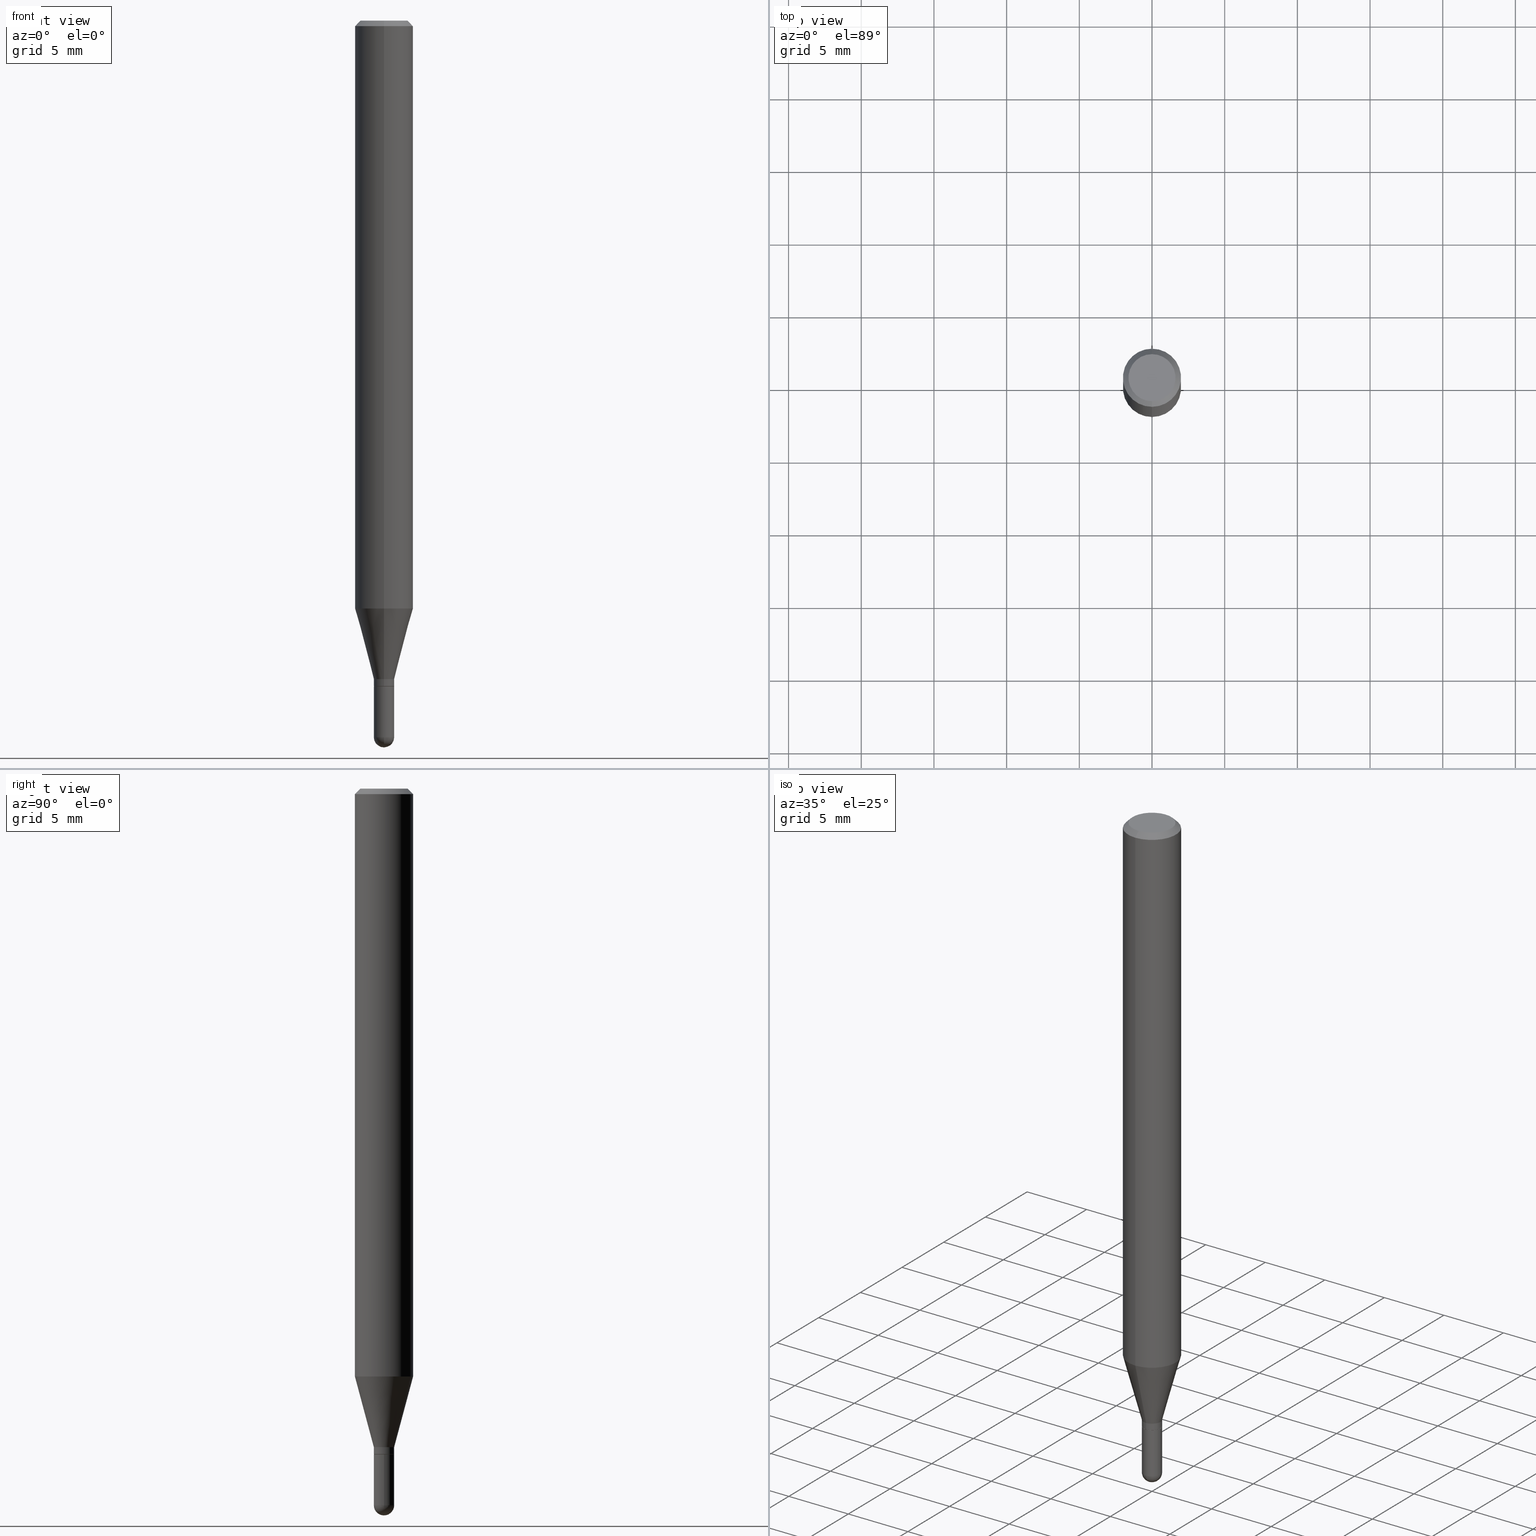
[diagram: canonical four-view strip — front | top / right | iso, engineering-drawing reading convention]
A machine part, canonical four-view strip (front | top / right | iso — engineering-drawing reading convention). The complete STEP part file that produces these views, byte-faithful:
ISO-10303-21;
HEADER;
FILE_DESCRIPTION (( 'STEP AP203' ),
    '1' );
FILE_NAME ('03019.STEP',
    '2024-03-08T18:00:51',
    ( '' ),
    ( '' ),
    'SwSTEP 2.0',
    'SolidWorks 2023',
    '' );
FILE_SCHEMA (( 'CONFIG_CONTROL_DESIGN' ));
ENDSEC;

DATA;
#1 = CARTESIAN_POINT ( 'NONE',  ( 4.408288980182875809E-29, -6.293619801112154185E-15, -1.802599999999999980 ) ) ;
#2 = EDGE_LOOP ( 'NONE', ( #88, #244, #318, #353, #144 ) ) ;
#3 = EDGE_CURVE ( 'NONE', #179, #322, #422, .T. ) ;
#4 = EDGE_CURVE ( 'NONE', #286, #284, #133, .T. ) ;
#5 = CARTESIAN_POINT ( 'NONE',  ( -1.888891404313694125E-16, -0.02705000000000629817, -1.803099999999999703 ) ) ;
#6 = ORIENTED_EDGE ( 'NONE', *, *, #24, .T. ) ;
#7 = DIRECTION ( 'NONE',  ( -6.982962677686266711E-15, -1.000000000000000000, 0.000000000000000000 ) ) ;
#8 = ORIENTED_EDGE ( 'NONE', *, *, #302, .T. ) ;
#9 = CARTESIAN_POINT ( 'NONE',  ( 0.000000000000000000, 0.000000000000000000, 0.000000000000000000 ) ) ;
#10 = AXIS2_PLACEMENT_3D ( 'NONE', #196, #82, #471 ) ;
#11 = VECTOR ( 'NONE', #367, 39.37007874015748143 ) ;
#12 = VERTEX_POINT ( 'NONE', #252 ) ;
#13 = CIRCLE ( 'NONE', #91, 0.02755000000000000157 ) ;
#14 = APPROVAL_PERSON_ORGANIZATION ( #354, #78, #508 ) ;
#15 = CARTESIAN_POINT ( 'NONE',  ( 0.02755000000000000851, -1.923806217702566944E-16, 1.343386701731780684E-30 ) ) ;
#16 = ORIENTED_EDGE ( 'NONE', *, *, #64, .T. ) ;
#17 = FACE_OUTER_BOUND ( 'NONE', #278, .T. ) ;
#18 = CARTESIAN_POINT ( 'NONE',  ( 5.499083108677937401E-16, 0.07874999999999994504, -0.01500000000000029261 ) ) ;
#19 = FACE_OUTER_BOUND ( 'NONE', #211, .T. ) ;
#20 = DIRECTION ( 'NONE',  ( 4.937700262164548831E-15, 0.7071067811865452413, -0.7071067811865497932 ) ) ;
#21 = EDGE_CURVE ( 'NONE', #183, #42, #372, .T. ) ;
#22 = CARTESIAN_POINT ( 'NONE',  ( -5.499083108677546915E-16, -0.07875000000000557943, -1.592418998652472384 ) ) ;
#23 = DIRECTION ( 'NONE',  ( -2.445468806185136597E-29, 3.491481338843145583E-15, 1.000000000000000000 ) ) ;
#24 = EDGE_CURVE ( 'NONE', #331, #166, #157, .T. ) ;
#25 = CARTESIAN_POINT ( 'NONE',  ( 4.746532679365040693E-29, -6.776790704627602522E-15, -1.940949999999999953 ) ) ;
#26 = PRODUCT_RELATED_PRODUCT_CATEGORY ( 'detail', '', ( #384 ) ) ;
#27 = DIRECTION ( 'NONE',  ( 1.000000000000000000, -6.982962677686265922E-15, 4.883557194083112340E-29 ) ) ;
#28 = AXIS2_PLACEMENT_3D ( 'NONE', #25, #336, #301 ) ;
#29 = CARTESIAN_POINT ( 'NONE',  ( 0.000000000000000000, 0.000000000000000000, 0.000000000000000000 ) ) ;
#30 = CC_DESIGN_APPROVAL ( #71, ( #418 ) ) ;
#31 = COORDINATED_UNIVERSAL_TIME_OFFSET ( 5, 0, .BEHIND. ) ;
#32 = CIRCLE ( 'NONE', #386, 0.02754999999999964769 ) ;
#33 = FACE_OUTER_BOUND ( 'NONE', #491, .T. ) ;
#34 = PERSON_AND_ORGANIZATION ( #449, #142 ) ;
#35 = CARTESIAN_POINT ( 'NONE',  ( 4.361579605101607956E-29, -6.226933826297307491E-15, -1.783500000000000085 ) ) ;
#36 = EDGE_LOOP ( 'NONE', ( #444, #329, #356, #338 ) ) ;
#37 = CARTESIAN_POINT ( 'NONE',  ( -1.923806217702541799E-16, -0.02754999999999964769, 9.618840869890028416E-17 ) ) ;
#38 = DIRECTION ( 'NONE',  ( -2.445517019961652946E-29, 3.491412293971016589E-15, 1.000000000000000000 ) ) ;
#39 = ORIENTED_EDGE ( 'NONE', *, *, #350, .F. ) ;
#40 = AXIS2_PLACEMENT_3D ( 'NONE', #205, #202, #355 ) ;
#41 = DIRECTION ( 'NONE',  ( -2.445517019961652946E-29, 3.491412293971016589E-15, 1.000000000000000000 ) ) ;
#42 = VERTEX_POINT ( 'NONE', #101 ) ;
#43 = DIRECTION ( 'NONE',  ( -6.982962677686264344E-15, -1.000000000000000000, 3.469013325287953293E-15 ) ) ;
#44 = ORIENTED_EDGE ( 'NONE', *, *, #280, .F. ) ;
#45 = CC_DESIGN_DATE_AND_TIME_ASSIGNMENT ( #270, #316, ( #418 ) ) ;
#46 = CARTESIAN_POINT ( 'NONE',  ( -0.02755000000000000157, -6.340385829645931250E-15, -1.803099999999999925 ) ) ;
#47 = EDGE_LOOP ( 'NONE', ( #81, #6 ) ) ;
#48 = VECTOR ( 'NONE', #399, 39.37007874015748143 ) ;
#49 = DIRECTION ( 'NONE',  ( 6.982962677686265922E-15, 1.000000000000000000, -3.491412293971016589E-15 ) ) ;
#50 = ORIENTED_EDGE ( 'NONE', *, *, #272, .F. ) ;
#51 = AXIS2_PLACEMENT_3D ( 'NONE', #65, #139, #425 ) ;
#52 = CARTESIAN_POINT ( 'NONE',  ( 4.114564141767253566E-46, -5.874275137583690859E-32, -1.682492539688712788E-17 ) ) ;
#53 = MANIFOLD_SOLID_BREP ( 'Body-Move/Copy2[1]', #306 ) ;
#54 = DIRECTION ( 'NONE',  ( -6.982962677686265922E-15, -1.000000000000000000, 3.491412293971016589E-15 ) ) ;
#55 = DIRECTION ( 'NONE',  ( -2.445468806185136597E-29, 3.491481338843145583E-15, 1.000000000000000000 ) ) ;
#56 = EDGE_CURVE ( 'NONE', #166, #331, #13, .T. ) ;
#57 = VERTEX_POINT ( 'NONE', #63 ) ;
#58 = EDGE_CURVE ( 'NONE', #183, #286, #261, .T. ) ;
#59 = DIRECTION ( 'NONE',  ( -2.445517019961652946E-29, 3.491412293971016589E-15, 1.000000000000000000 ) ) ;
#60 = FACE_OUTER_BOUND ( 'NONE', #446, .T. ) ;
#61 = APPROVAL_PERSON_ORGANIZATION ( #230, #71, #385 ) ;
#62 = CARTESIAN_POINT ( 'NONE',  ( -4.888104823412212925E-16, -0.06374999999999998723, 2.057526083437651208E-16 ) ) ;
#63 = CARTESIAN_POINT ( 'NONE',  ( -1.923806217702105461E-16, -0.02755000000000587534, -1.783500000000000085 ) ) ;
#64 = EDGE_CURVE ( 'NONE', #237, #179, #213, .T. ) ;
#65 = CARTESIAN_POINT ( 'NONE',  ( 4.744176696238351867E-29, -6.780164606559253859E-15, -1.940949999999999953 ) ) ;
#66 = DIRECTION ( 'NONE',  ( -2.445517019961652946E-29, 3.491412293971016589E-15, 1.000000000000000000 ) ) ;
#67 = FACE_OUTER_BOUND ( 'NONE', #124, .T. ) ;
#68 = EDGE_CURVE ( 'NONE', #488, #179, #398, .T. ) ;
#69 = APPROVAL_STATUS ( 'not_yet_approved' ) ;
#70 = APPLICATION_PROTOCOL_DEFINITION ( 'international standard', 'config_control_design', 1994, #430 ) ;
#71 = APPROVAL ( #69, 'UNSPECIFIED' ) ;
#72 = CALENDAR_DATE ( 2024, 8, 3 ) ;
#73 = CARTESIAN_POINT ( 'NONE',  ( 4.746532679365040693E-29, -6.776790704627602522E-15, -1.940949999999999953 ) ) ;
#74 = VECTOR ( 'NONE', #168, 39.37007874015748854 ) ;
#75 = PERSON_AND_ORGANIZATION ( #449, #142 ) ;
#76 = CONICAL_SURFACE ( 'NONE', #391, 0.02754999999999964769, 0.2617993877991500740 ) ;
#77 = CYLINDRICAL_SURFACE ( 'NONE', #117, 0.02754999999999964769 ) ;
#78 = APPROVAL ( #432, 'UNSPECIFIED' ) ;
#79 = FACE_OUTER_BOUND ( 'NONE', #359, .T. ) ;
#80 = DIRECTION ( 'NONE',  ( -2.445517019961652946E-29, 3.491412293971016589E-15, 1.000000000000000000 ) ) ;
#81 = ORIENTED_EDGE ( 'NONE', *, *, #56, .T. ) ;
#82 = DIRECTION ( 'NONE',  ( -2.445517019961652946E-29, 3.491412293971016589E-15, 1.000000000000000000 ) ) ;
#83 = AXIS2_PLACEMENT_3D ( 'NONE', #462, #345, #304 ) ;
#84 = EDGE_LOOP ( 'NONE', ( #369, #8, #50, #327 ) ) ;
#85 = ORIENTED_EDGE ( 'NONE', *, *, #148, .T. ) ;
#86 = ADVANCED_FACE ( 'NONE', ( #60 ), #185, .F. ) ;
#87 = PLANE ( 'NONE',  #241 ) ;
#88 = ORIENTED_EDGE ( 'NONE', *, *, #165, .F. ) ;
#89 = LINE ( 'NONE', #325, #74 ) ;
#90 = EDGE_LOOP ( 'NONE', ( #208, #362, #203, #476 ) ) ;
#91 = AXIS2_PLACEMENT_3D ( 'NONE', #416, #414, #303 ) ;
#92 = DIRECTION ( 'NONE',  ( -1.000000000000000000, 6.982962677686266711E-15, -4.883557194083112901E-29 ) ) ;
#93 = DIRECTION ( 'NONE',  ( 1.000000000000000000, -6.982962677686256455E-15, 0.000000000000000000 ) ) ;
#94 = AXIS2_PLACEMENT_3D ( 'NONE', #1, #38, #470 ) ;
#95 = CYLINDRICAL_SURFACE ( 'NONE', #132, 0.02755000000000000851 ) ;
#96 = ORIENTED_EDGE ( 'NONE', *, *, #215, .T. ) ;
#97 = CARTESIAN_POINT ( 'NONE',  ( 0.000000000000000000, 0.000000000000000000, 0.000000000000000000 ) ) ;
#98 = CARTESIAN_POINT ( 'NONE',  ( 4.409511738692855856E-29, -6.295365507259138676E-15, -1.803099999999999703 ) ) ;
#99 = CIRCLE ( 'NONE', #169, 0.07875000000000000056 ) ;
#100 = CYLINDRICAL_SURFACE ( 'NONE', #307, 0.02755000000000000851 ) ;
#101 = CARTESIAN_POINT ( 'NONE',  ( 5.595524044111180475E-16, 0.07874999999999994504, -0.01500000000000029261 ) ) ;
#102 = CARTESIAN_POINT ( 'NONE',  ( -1.923806217702107926E-16, -0.02755000000000604188, -1.802599999999999980 ) ) ;
#103 = AXIS2_PLACEMENT_3D ( 'NONE', #214, #59, #282 ) ;
#104 = CC_DESIGN_APPROVAL ( #78, ( #249 ) ) ;
#105 = CC_DESIGN_DATE_AND_TIME_ASSIGNMENT ( #310, #193, ( #249 ) ) ;
#106 = EDGE_CURVE ( 'NONE', #281, #200, #481, .T. ) ;
#107 = COORDINATED_UNIVERSAL_TIME_OFFSET ( 5, 0, .BEHIND. ) ;
#108 = EDGE_CURVE ( 'NONE', #126, #42, #297, .T. ) ;
#109 = APPROVAL_ROLE ( '' ) ;
#110 = DIRECTION ( 'NONE',  ( -2.445517019961652946E-29, 3.491412293971016589E-15, 1.000000000000000000 ) ) ;
#111 = ADVANCED_FACE ( 'NONE', ( #343 ), #256, .T. ) ;
#112 = COORDINATED_UNIVERSAL_TIME_OFFSET ( 5, 0, .BEHIND. ) ;
#113 = DIRECTION ( 'NONE',  ( -6.982962677686266711E-15, -1.000000000000000000, 0.000000000000000000 ) ) ;
#114 = AXIS2_PLACEMENT_3D ( 'NONE', #342, #499, #421 ) ;
#115 = APPROVAL_DATE_TIME ( #201, #130 ) ;
#116 = CARTESIAN_POINT ( 'NONE',  ( 5.595524044111174559E-16, 0.07874999999999440781, -1.592418998652472828 ) ) ;
#117 = AXIS2_PLACEMENT_3D ( 'NONE', #119, #475, #429 ) ;
#118 = ORIENTED_EDGE ( 'NONE', *, *, #137, .F. ) ;
#119 = CARTESIAN_POINT ( 'NONE',  ( 0.000000000000000000, 0.000000000000000000, 0.000000000000000000 ) ) ;
#120 = ADVANCED_FACE ( 'NONE', ( #79 ), #332, .T. ) ;
#121 = CIRCLE ( 'NONE', #407, 0.06374999999999998723 ) ;
#122 = ORIENTED_EDGE ( 'NONE', *, *, #388, .T. ) ;
#123 = CARTESIAN_POINT ( 'NONE',  ( 3.668275529942483535E-31, -5.237118440956531219E-17, -0.01500000000000001679 ) ) ;
#124 = EDGE_LOOP ( 'NONE', ( #305, #239, #39, #511 ) ) ;
#125 = DIRECTION ( 'NONE',  ( -2.445517019961652946E-29, 3.491412293971016589E-15, 1.000000000000000000 ) ) ;
#126 = VERTEX_POINT ( 'NONE', #271 ) ;
#127 = EDGE_CURVE ( 'NONE', #197, #57, #311, .T. ) ;
#128 = CARTESIAN_POINT ( 'NONE',  ( 3.776534640565333034E-16, 0.02754999999999342003, -1.783500000000000085 ) ) ;
#129 = ORIENTED_EDGE ( 'NONE', *, *, #350, .T. ) ;
#130 = APPROVAL ( #151, 'UNSPECIFIED' ) ;
#131 = DIRECTION ( 'NONE',  ( -2.445517019961652946E-29, 3.491412293971016589E-15, 1.000000000000000000 ) ) ;
#132 = AXIS2_PLACEMENT_3D ( 'NONE', #485, #415, #404 ) ;
#133 = LINE ( 'NONE', #292, #315 ) ;
#134 = CIRCLE ( 'NONE', #51, 0.02755000000000005014 ) ;
#135 = DIRECTION ( 'NONE',  ( -1.000000000000000000, 6.982962677686266711E-15, -4.883557194083112901E-29 ) ) ;
#136 = DIRECTION ( 'NONE',  ( 1.000000000000000000, -6.982962677686254878E-15, 0.000000000000000000 ) ) ;
#137 = EDGE_CURVE ( 'NONE', #200, #281, #408, .T. ) ;
#138 = EDGE_LOOP ( 'NONE', ( #400, #122, #250, #140 ) ) ;
#139 = DIRECTION ( 'NONE',  ( -1.000000000000000000, 7.105427357601001070E-15, -4.926315508542082329E-29 ) ) ;
#140 = ORIENTED_EDGE ( 'NONE', *, *, #170, .F. ) ;
#141 = AXIS2_PLACEMENT_3D ( 'NONE', #451, #135, #439 ) ;
#142 = ORGANIZATION ( 'UNSPECIFIED', 'UNSPECIFIED', '' ) ;
#143 = APPLICATION_PROTOCOL_DEFINITION ( 'international standard', 'config_control_design', 1994, #442 ) ;
#144 = ORIENTED_EDGE ( 'NONE', *, *, #24, .F. ) ;
#145 = PERSON_AND_ORGANIZATION_ROLE ( 'design_owner' ) ;
#146 = AXIS2_PLACEMENT_3D ( 'NONE', #394, #80, #427 ) ;
#147 = ORIENTED_EDGE ( 'NONE', *, *, #108, .F. ) ;
#148 = EDGE_CURVE ( 'NONE', #42, #284, #371, .T. ) ;
#149 = MECHANICAL_CONTEXT ( 'NONE', #442, 'mechanical' ) ;
#150 = CALENDAR_DATE ( 2024, 8, 3 ) ;
#151 = APPROVAL_STATUS ( 'not_yet_approved' ) ;
#152 = CARTESIAN_POINT ( 'NONE',  ( 1.923806217703042972E-16, 0.02754999999999325003, -1.940949999999999953 ) ) ;
#153 = EDGE_CURVE ( 'NONE', #57, #286, #433, .T. ) ;
#154 = SECURITY_CLASSIFICATION_LEVEL ( 'unclassified' ) ;
#155 = CARTESIAN_POINT ( 'NONE',  ( 0.02755000000000000851, -6.728520975118096173E-15, -1.940949999999999953 ) ) ;
#156 = SHAPE_DEFINITION_REPRESENTATION ( #469, #396 ) ;
#157 = CIRCLE ( 'NONE', #259, 0.02755000000000000157 ) ;
#158 = CARTESIAN_POINT ( 'NONE',  ( 4.361579605101607956E-29, -6.226933826297307491E-15, -1.783500000000000085 ) ) ;
#159 = AXIS2_PLACEMENT_3D ( 'NONE', #123, #248, #218 ) ;
#160 = ORIENTED_EDGE ( 'NONE', *, *, #360, .T. ) ;
#161 = PERSON_AND_ORGANIZATION ( #449, #142 ) ;
#162 = CARTESIAN_POINT ( 'NONE',  ( 1.957545237019050732E-16, 0.02754999999999964769, -9.618840869890028416E-17 ) ) ;
#163 = ORIENTED_EDGE ( 'NONE', *, *, #165, .T. ) ;
#164 = CARTESIAN_POINT ( 'NONE',  ( 3.894287764114914031E-29, -5.559791269048257593E-15, -1.592418998652472606 ) ) ;
#165 = EDGE_CURVE ( 'NONE', #322, #331, #317, .T. ) ;
#166 = VERTEX_POINT ( 'NONE', #273 ) ;
#167 = AXIS2_PLACEMENT_3D ( 'NONE', #455, #374, #181 ) ;
#168 = DIRECTION ( 'NONE',  ( 1.839019923739598738E-15, 0.2588190451025247363, 0.9659258262890673130 ) ) ;
#169 = AXIS2_PLACEMENT_3D ( 'NONE', #164, #402, #43 ) ;
#170 = EDGE_CURVE ( 'NONE', #281, #197, #235, .T. ) ;
#171 = ORIENTED_EDGE ( 'NONE', *, *, #3, .T. ) ;
#172 = CARTESIAN_POINT ( 'NONE',  ( -5.402642173245076924E-16, -0.07875000000000004219, -0.01499999999999974097 ) ) ;
#173 = ORIENTED_EDGE ( 'NONE', *, *, #459, .T. ) ;
#174 = VECTOR ( 'NONE', #240, 39.37007874015748143 ) ;
#175 = LINE ( 'NONE', #15, #457 ) ;
#176 = ORIENTED_EDGE ( 'NONE', *, *, #3, .F. ) ;
#177 = AXIS2_PLACEMENT_3D ( 'NONE', #269, #41, #113 ) ;
#178 = CARTESIAN_POINT ( 'NONE',  ( -0.02755000000000000851, -6.340385829645931250E-15, -1.940949999999999953 ) ) ;
#179 = VERTEX_POINT ( 'NONE', #152 ) ;
#180 = FACE_OUTER_BOUND ( 'NONE', #504, .T. ) ;
#181 = DIRECTION ( 'NONE',  ( -6.982962677686266711E-15, -1.000000000000000000, 0.000000000000000000 ) ) ;
#182 = DIRECTION ( 'NONE',  ( -6.982962677686264344E-15, -1.000000000000000000, 3.491412293971015800E-15 ) ) ;
#183 = VERTEX_POINT ( 'NONE', #116 ) ;
#184 = CYLINDRICAL_SURFACE ( 'NONE', #500, 0.07875000000000000056 ) ;
#185 = PLANE ( 'NONE',  #512 ) ;
#186 = DIMENSIONAL_EXPONENTS ( 1.000000000000000000, 0.000000000000000000, 0.000000000000000000, 0.000000000000000000, 0.000000000000000000, 0.000000000000000000, 0.000000000000000000 ) ;
#187 = LOCAL_TIME ( 13, 0, 51.00000000000000000, #31 ) ;
#188 = PLANE ( 'NONE',  #83 ) ;
#189 = CALENDAR_DATE ( 2024, 8, 3 ) ;
#190 = CIRCLE ( 'NONE', #253, 0.02754999999999964769 ) ;
#191 = AXIS2_PLACEMENT_3D ( 'NONE', #461, #27, #221 ) ;
#192 = CIRCLE ( 'NONE', #401, 0.02755000000000000851 ) ;
#193 = DATE_TIME_ROLE ( 'classification_date' ) ;
#194 = CC_DESIGN_PERSON_AND_ORGANIZATION_ASSIGNMENT ( #319, #466, ( #249 ) ) ;
#195 =( GEOMETRIC_REPRESENTATION_CONTEXT ( 3 ) GLOBAL_UNCERTAINTY_ASSIGNED_CONTEXT ( ( #267 ) ) GLOBAL_UNIT_ASSIGNED_CONTEXT ( ( #257, #339, #502 ) ) REPRESENTATION_CONTEXT ( 'NONE', 'WORKASPACE' ) );
#196 = CARTESIAN_POINT ( 'NONE',  ( 4.361579605101607956E-29, -6.226933826297307491E-15, -1.783500000000000085 ) ) ;
#197 = VERTEX_POINT ( 'NONE', #102 ) ;
#198 = DIRECTION ( 'NONE',  ( -1.807323732225328562E-15, -0.2588190451025179639, 0.9659258262890690894 ) ) ;
#199 = EDGE_CURVE ( 'NONE', #217, #440, #395, .T. ) ;
#200 = VERTEX_POINT ( 'NONE', #509 ) ;
#201 = DATE_AND_TIME ( #150, #473 ) ;
#202 = DIRECTION ( 'NONE',  ( -2.445517019961652946E-29, 3.491412293971016589E-15, 1.000000000000000000 ) ) ;
#203 = ORIENTED_EDGE ( 'NONE', *, *, #127, .T. ) ;
#204 = PERSON_AND_ORGANIZATION_ROLE ( 'creator' ) ;
#205 = CARTESIAN_POINT ( 'NONE',  ( 4.409511738692855856E-29, -6.295365507259138676E-15, -1.803099999999999703 ) ) ;
#206 = EDGE_LOOP ( 'NONE', ( #219, #468, #262, #242 ) ) ;
#207 = DIRECTION ( 'NONE',  ( -2.445468806185136597E-29, 3.491481338843145583E-15, 1.000000000000000000 ) ) ;
#208 = ORIENTED_EDGE ( 'NONE', *, *, #199, .F. ) ;
#209 = ADVANCED_FACE ( 'NONE', ( #320 ), #77, .T. ) ;
#210 = CYLINDRICAL_SURFACE ( 'NONE', #298, 0.02754999999999964769 ) ;
#211 = EDGE_LOOP ( 'NONE', ( #365, #173, #44, #176 ) ) ;
#212 = AXIS2_PLACEMENT_3D ( 'NONE', #501, #258, #349 ) ;
#213 = CIRCLE ( 'NONE', #265, 0.02755000000000000851 ) ;
#214 = CARTESIAN_POINT ( 'NONE',  ( 3.668275529942483535E-31, -5.237118440956531219E-17, -0.01500000000000001679 ) ) ;
#215 = EDGE_CURVE ( 'NONE', #197, #217, #346, .T. ) ;
#216 = APPROVAL_PERSON_ORGANIZATION ( #75, #130, #109 ) ;
#217 = VERTEX_POINT ( 'NONE', #478 ) ;
#218 = DIRECTION ( 'NONE',  ( 6.982962677686264344E-15, 1.000000000000000000, -3.496114991891765576E-15 ) ) ;
#219 = ORIENTED_EDGE ( 'NONE', *, *, #459, .F. ) ;
#220 = DIRECTION ( 'NONE',  ( 6.982962677686266711E-15, 1.000000000000000000, 0.000000000000000000 ) ) ;
#221 = DIRECTION ( 'NONE',  ( 6.982962677686266711E-15, 1.000000000000000000, 0.000000000000000000 ) ) ;
#222 = DIRECTION ( 'NONE',  ( -6.982962677686265922E-15, -1.000000000000000000, 3.491412293971016589E-15 ) ) ;
#223 = DIRECTION ( 'NONE',  ( -2.445517019961652385E-29, 3.491412293971016589E-15, 1.000000000000000000 ) ) ;
#224 = DIRECTION ( 'NONE',  ( -2.445517019961652946E-29, 3.491412293971016589E-15, 1.000000000000000000 ) ) ;
#225 = CARTESIAN_POINT ( 'NONE',  ( 5.595524044110787031E-16, 0.07875000000000000056, -2.749487181502175115E-16 ) ) ;
#226 = MANIFOLD_SOLID_BREP ( 'Body-Move/Copy2[2]', #492 ) ;
#227 = CARTESIAN_POINT ( 'NONE',  ( 4.746532679365040693E-29, -6.776790704627602522E-15, -1.940949999999999953 ) ) ;
#228 = DIRECTION ( 'NONE',  ( -2.445517019961652946E-29, 3.491412293971016589E-15, 1.000000000000000000 ) ) ;
#229 = DIRECTION ( 'NONE',  ( 1.000000000000000000, -6.982962677686265922E-15, 4.876176775795935793E-29 ) ) ;
#230 = PERSON_AND_ORGANIZATION ( #449, #142 ) ;
#231 = EDGE_CURVE ( 'NONE', #57, #440, #190, .T. ) ;
#232 = DIRECTION ( 'NONE',  ( 1.000000000000000000, -6.982962677686254878E-15, 0.000000000000000000 ) ) ;
#233 = CONICAL_SURFACE ( 'NONE', #10, 0.02754999999999964769, 0.2617993877991500740 ) ;
#234 = CARTESIAN_POINT ( 'NONE',  ( 4.361579605101607956E-29, -6.226933826297307491E-15, -1.783500000000000085 ) ) ;
#235 = LINE ( 'NONE', #5, #174 ) ;
#236 = EDGE_CURVE ( 'NONE', #440, #57, #32, .T. ) ;
#237 = VERTEX_POINT ( 'NONE', #155 ) ;
#238 = CARTESIAN_POINT ( 'NONE',  ( -0.02755000000000000851, 1.957545237019076617E-16, -1.355166617365226740E-30 ) ) ;
#239 = ORIENTED_EDGE ( 'NONE', *, *, #21, .T. ) ;
#240 = DIRECTION ( 'NONE',  ( -4.937700262164674260E-15, -0.7071067811865632269, 0.7071067811865319186 ) ) ;
#241 = AXIS2_PLACEMENT_3D ( 'NONE', #246, #406, #49 ) ;
#242 = ORIENTED_EDGE ( 'NONE', *, *, #333, .F. ) ;
#243 = CARTESIAN_POINT ( 'NONE',  ( 4.408288980182875809E-29, -6.293619801112154185E-15, -1.802599999999999980 ) ) ;
#244 = ORIENTED_EDGE ( 'NONE', *, *, #280, .T. ) ;
#245 = ADVANCED_FACE ( 'NONE', ( #313 ), #76, .T. ) ;
#246 = CARTESIAN_POINT ( 'NONE',  ( 4.451638707024993845E-16, 0.06374999999999998723, -2.309899964390958095E-16 ) ) ;
#247 = ORIENTED_EDGE ( 'NONE', *, *, #56, .F. ) ;
#248 = DIRECTION ( 'NONE',  ( 2.445517019961652946E-29, -3.491412293971016589E-15, -1.000000000000000000 ) ) ;
#249 = SECURITY_CLASSIFICATION ( '', '', #154 ) ;
#250 = ORIENTED_EDGE ( 'NONE', *, *, #215, .F. ) ;
#251 = DIRECTION ( 'NONE',  ( 1.000000000000000000, -6.982962677686254878E-15, 0.000000000000000000 ) ) ;
#252 = CARTESIAN_POINT ( 'NONE',  ( -1.957545237018603300E-16, -0.02755000000000680863, -1.940949999999999953 ) ) ;
#253 = AXIS2_PLACEMENT_3D ( 'NONE', #158, #110, #7 ) ;
#254 = DIRECTION ( 'NONE',  ( -6.982962677686266711E-15, -1.000000000000000000, 3.491412293971016984E-15 ) ) ;
#255 = EDGE_LOOP ( 'NONE', ( #324, #405, #129, #147 ) ) ;
#256 = CONICAL_SURFACE ( 'NONE', #212, 0.02705000000000000113, 0.7853981633974739252 ) ;
#257 =( CONVERSION_BASED_UNIT ( 'INCH', #378 ) LENGTH_UNIT ( ) NAMED_UNIT ( #186 ) );
#258 = DIRECTION ( 'NONE',  ( -2.445517019961652946E-29, 3.491412293971016589E-15, 1.000000000000000000 ) ) ;
#259 = AXIS2_PLACEMENT_3D ( 'NONE', #295, #23, #93 ) ;
#260 = LOCAL_TIME ( 13, 0, 51.00000000000000000, #112 ) ;
#261 = CIRCLE ( 'NONE', #465, 0.07875000000000000056 ) ;
#262 = ORIENTED_EDGE ( 'NONE', *, *, #64, .F. ) ;
#263 = ADVANCED_FACE ( 'NONE', ( #323 ), #233, .T. ) ;
#264 = PERSON_AND_ORGANIZATION ( #449, #142 ) ;
#265 = AXIS2_PLACEMENT_3D ( 'NONE', #227, #417, #136 ) ;
#266 = DIRECTION ( 'NONE',  ( -6.982962677686264344E-15, -1.000000000000000000, 3.491412293971015800E-15 ) ) ;
#267 = UNCERTAINTY_MEASURE_WITH_UNIT (LENGTH_MEASURE( 1.000000000000000082E-05 ), #257, 'distance_accuracy_value', 'NONE');
#268 = PERSON_AND_ORGANIZATION ( #449, #142 ) ;
#269 = CARTESIAN_POINT ( 'NONE',  ( 4.409511738692855856E-29, -6.295365507259138676E-15, -1.803099999999999703 ) ) ;
#270 = DATE_AND_TIME ( #275, #260 ) ;
#271 = CARTESIAN_POINT ( 'NONE',  ( 4.975360907851465623E-16, 0.06374999999999998723, -2.394024591375393642E-16 ) ) ;
#272 = EDGE_CURVE ( 'NONE', #286, #183, #99, .T. ) ;
#273 = CARTESIAN_POINT ( 'NONE',  ( 0.02755000000000000157, -6.487870623838331454E-15, -1.803099999999999925 ) ) ;
#274 = EDGE_LOOP ( 'NONE', ( #96, #453, #377, #397 ) ) ;
#275 = CALENDAR_DATE ( 2024, 8, 3 ) ;
#276 = DIRECTION ( 'NONE',  ( -6.982962677686266711E-15, -1.000000000000000000, 0.000000000000000000 ) ) ;
#277 = DESIGN_CONTEXT ( 'detailed design', #430, 'design' ) ;
#278 = EDGE_LOOP ( 'NONE', ( #160, #434 ) ) ;
#279 = DIRECTION ( 'NONE',  ( -6.982962677686266711E-15, -1.000000000000000000, 0.000000000000000000 ) ) ;
#280 = EDGE_CURVE ( 'NONE', #322, #12, #366, .T. ) ;
#281 = VERTEX_POINT ( 'NONE', #361 ) ;
#282 = DIRECTION ( 'NONE',  ( -6.982962677686264344E-15, -1.000000000000000000, 3.496114991891765576E-15 ) ) ;
#283 = CC_DESIGN_PERSON_AND_ORGANIZATION_ASSIGNMENT ( #161, #506, ( #335 ) ) ;
#284 = VERTEX_POINT ( 'NONE', #390 ) ;
#285 = DIRECTION ( 'NONE',  ( -6.982962677686265922E-15, -1.000000000000000000, 3.491412293971016589E-15 ) ) ;
#286 = VERTEX_POINT ( 'NONE', #22 ) ;
#287 = ADVANCED_FACE ( 'NONE', ( #19 ), #373, .T. ) ;
#288 = FACE_OUTER_BOUND ( 'NONE', #255, .T. ) ;
#289 = ORIENTED_EDGE ( 'NONE', *, *, #58, .T. ) ;
#290 = FACE_OUTER_BOUND ( 'NONE', #90, .T. ) ;
#291 = VECTOR ( 'NONE', #443, 39.37007874015748143 ) ;
#292 = CARTESIAN_POINT ( 'NONE',  ( -5.499083108677933457E-16, -0.07875000000000000056, 2.749487181502175115E-16 ) ) ;
#293 = DIRECTION ( 'NONE',  ( -2.445517019961652946E-29, 3.491412293971016589E-15, 1.000000000000000000 ) ) ;
#294 = ADVANCED_FACE ( 'NONE', ( #290 ), #210, .T. ) ;
#295 = CARTESIAN_POINT ( 'NONE',  ( 4.409424804432419562E-29, -6.295490002068075450E-15, -1.803099999999999925 ) ) ;
#296 = DIRECTION ( 'NONE',  ( -2.445468806185136597E-29, 3.491481338843145583E-15, 1.000000000000000000 ) ) ;
#297 = LINE ( 'NONE', #18, #454 ) ;
#298 = AXIS2_PLACEMENT_3D ( 'NONE', #9, #293, #254 ) ;
#299 = DIRECTION ( 'NONE',  ( 6.982962677686264344E-15, 1.000000000000000000, -3.496114991891765576E-15 ) ) ;
#300 = AXIS2_PLACEMENT_3D ( 'NONE', #73, #207, #232 ) ;
#301 = DIRECTION ( 'NONE',  ( 1.000000000000000000, -6.982962677686254878E-15, 0.000000000000000000 ) ) ;
#302 = EDGE_CURVE ( 'NONE', #440, #183, #89, .T. ) ;
#303 = DIRECTION ( 'NONE',  ( 1.000000000000000000, -6.982962677686256455E-15, 0.000000000000000000 ) ) ;
#304 = DIRECTION ( 'NONE',  ( -1.000000000000000000, 6.982962677686265922E-15, -4.876176775795935793E-29 ) ) ;
#305 = ORIENTED_EDGE ( 'NONE', *, *, #272, .T. ) ;
#306 = CLOSED_SHELL ( 'NONE', ( #479, #287, #489, #363, #340 ) ) ;
#307 = AXIS2_PLACEMENT_3D ( 'NONE', #419, #296, #229 ) ;
#308 = CALENDAR_DATE ( 2024, 8, 3 ) ;
#309 = EDGE_CURVE ( 'NONE', #217, #197, #375, .T. ) ;
#310 = DATE_AND_TIME ( #72, #448 ) ;
#311 = LINE ( 'NONE', #37, #48 ) ;
#312 = APPROVAL_DATE_TIME ( #426, #78 ) ;
#313 = FACE_OUTER_BOUND ( 'NONE', #84, .T. ) ;
#314 = ORIENTED_EDGE ( 'NONE', *, *, #106, .F. ) ;
#315 = VECTOR ( 'NONE', #66, 39.37007874015748143 ) ;
#316 = DATE_TIME_ROLE ( 'creation_date' ) ;
#317 = LINE ( 'NONE', #238, #321 ) ;
#318 = ORIENTED_EDGE ( 'NONE', *, *, #333, .T. ) ;
#319 = PERSON_AND_ORGANIZATION ( #449, #142 ) ;
#320 = FACE_OUTER_BOUND ( 'NONE', #274, .T. ) ;
#321 = VECTOR ( 'NONE', #351, 39.37007874015748143 ) ;
#322 = VERTEX_POINT ( 'NONE', #178 ) ;
#323 = FACE_OUTER_BOUND ( 'NONE', #36, .T. ) ;
#324 = ORIENTED_EDGE ( 'NONE', *, *, #368, .F. ) ;
#325 = CARTESIAN_POINT ( 'NONE',  ( 1.957545237019486824E-16, 0.02754999999999342003, -1.783500000000000085 ) ) ;
#326 = CONICAL_SURFACE ( 'NONE', #438, 0.07875000000000000056, 0.7853981633974485010 ) ;
#327 = ORIENTED_EDGE ( 'NONE', *, *, #153, .F. ) ;
#328 = DIRECTION ( 'NONE',  ( -2.445517019961652946E-29, 3.491412293971016589E-15, 1.000000000000000000 ) ) ;
#329 = ORIENTED_EDGE ( 'NONE', *, *, #236, .T. ) ;
#330 = CARTESIAN_POINT ( 'NONE',  ( 3.668275529942483535E-31, -5.237118440956531219E-17, -0.01500000000000001679 ) ) ;
#331 = VERTEX_POINT ( 'NONE', #46 ) ;
#332 = CONICAL_SURFACE ( 'NONE', #177, 0.02705000000000000113, 0.7853981633974739252 ) ;
#333 = EDGE_CURVE ( 'NONE', #12, #237, #192, .T. ) ;
#334 = FACE_OUTER_BOUND ( 'NONE', #2, .T. ) ;
#335 = PRODUCT_DEFINITION_FORMATION_WITH_SPECIFIED_SOURCE ( 'ANY', '', #384, .NOT_KNOWN. ) ;
#336 = DIRECTION ( 'NONE',  ( -2.445468806185136597E-29, 3.491481338843145583E-15, 1.000000000000000000 ) ) ;
#337 = DATE_AND_TIME ( #189, #187 ) ;
#338 = ORIENTED_EDGE ( 'NONE', *, *, #58, .F. ) ;
#339 =( NAMED_UNIT ( * ) PLANE_ANGLE_UNIT ( ) SI_UNIT ( $, .RADIAN. ) );
#340 = ADVANCED_FACE ( 'NONE', ( #334 ), #95, .T. ) ;
#341 = ORIENTED_EDGE ( 'NONE', *, *, #4, .T. ) ;
#342 = CARTESIAN_POINT ( 'NONE',  ( 0.000000000000000000, 0.000000000000000000, 0.000000000000000000 ) ) ;
#343 = FACE_OUTER_BOUND ( 'NONE', #138, .T. ) ;
#344 = CC_DESIGN_APPROVAL ( #130, ( #335 ) ) ;
#345 = DIRECTION ( 'NONE',  ( 2.438088387897960049E-29, -3.491481338843145188E-15, -1.000000000000000000 ) ) ;
#346 = CIRCLE ( 'NONE', #94, 0.02754999999999965463 ) ;
#347 = CYLINDRICAL_SURFACE ( 'NONE', #392, 0.07875000000000000056 ) ;
#348 = PERSON_AND_ORGANIZATION_ROLE ( 'creator' ) ;
#349 = DIRECTION ( 'NONE',  ( -6.982962677686266711E-15, -1.000000000000000000, 0.000000000000000000 ) ) ;
#350 = EDGE_CURVE ( 'NONE', #284, #42, #463, .T. ) ;
#351 = DIRECTION ( 'NONE',  ( -2.445468806185136877E-29, 3.491481338843145188E-15, 1.000000000000000000 ) ) ;
#352 = EDGE_CURVE ( 'NONE', #480, #284, #447, .T. ) ;
#353 = ORIENTED_EDGE ( 'NONE', *, *, #423, .T. ) ;
#354 = PERSON_AND_ORGANIZATION ( #449, #142 ) ;
#355 = DIRECTION ( 'NONE',  ( -6.982962677686266711E-15, -1.000000000000000000, 0.000000000000000000 ) ) ;
#356 = ORIENTED_EDGE ( 'NONE', *, *, #153, .T. ) ;
#357 = AXIS2_PLACEMENT_3D ( 'NONE', #410, #92, #220 ) ;
#358 = CARTESIAN_POINT ( 'NONE',  ( -1.923806217702105461E-16, -0.02755000000000587534, -1.783500000000000085 ) ) ;
#359 = EDGE_LOOP ( 'NONE', ( #403, #437, #472, #483 ) ) ;
#360 = EDGE_CURVE ( 'NONE', #126, #480, #121, .T. ) ;
#361 = CARTESIAN_POINT ( 'NONE',  ( -1.888891404313694125E-16, -0.02705000000000629817, -1.803099999999999703 ) ) ;
#362 = ORIENTED_EDGE ( 'NONE', *, *, #309, .T. ) ;
#363 = ADVANCED_FACE ( 'NONE', ( #376 ), #482, .T. ) ;
#364 = CARTESIAN_POINT ( 'NONE',  ( 4.746532679365040693E-29, -6.776790704627602522E-15, -1.940949999999999953 ) ) ;
#365 = ORIENTED_EDGE ( 'NONE', *, *, #68, .F. ) ;
#366 = CIRCLE ( 'NONE', #300, 0.02755000000000000851 ) ;
#367 = DIRECTION ( 'NONE',  ( -4.851104656540965064E-15, -0.7071067811865501263, -0.7071067811865449082 ) ) ;
#368 = EDGE_CURVE ( 'NONE', #480, #126, #411, .T. ) ;
#369 = ORIENTED_EDGE ( 'NONE', *, *, #231, .T. ) ;
#370 = LINE ( 'NONE', #445, #291 ) ;
#371 = CIRCLE ( 'NONE', #146, 0.07875000000000000056 ) ;
#372 = LINE ( 'NONE', #225, #383 ) ;
#373 = SPHERICAL_SURFACE ( 'NONE', #141, 0.02755000000000005014 ) ;
#374 = DIRECTION ( 'NONE',  ( -2.445517019961652946E-29, 3.491412293971016589E-15, 1.000000000000000000 ) ) ;
#375 = CIRCLE ( 'NONE', #505, 0.02754999999999965463 ) ;
#376 = FACE_OUTER_BOUND ( 'NONE', #206, .T. ) ;
#377 = ORIENTED_EDGE ( 'NONE', *, *, #231, .F. ) ;
#378 = LENGTH_MEASURE_WITH_UNIT ( LENGTH_MEASURE( 0.02539999999999999897 ), #497 );
#379 = CARTESIAN_POINT ( 'NONE',  ( 3.894287764114914031E-29, -5.559791269048257593E-15, -1.592418998652472606 ) ) ;
#380 = CARTESIAN_POINT ( 'NONE',  ( 4.812727353412096861E-29, -6.874667966478556981E-15, -1.968500000000000139 ) ) ;
#381 = ORIENTED_EDGE ( 'NONE', *, *, #21, .F. ) ;
#382 = DIRECTION ( 'NONE',  ( 2.445517019961652946E-29, -3.491412293971016589E-15, -1.000000000000000000 ) ) ;
#383 = VECTOR ( 'NONE', #450, 39.37007874015748143 ) ;
#384 = PRODUCT ( '03019', '03019', '', ( #149 ) ) ;
#385 = APPROVAL_ROLE ( '' ) ;
#386 = AXIS2_PLACEMENT_3D ( 'NONE', #234, #510, #279 ) ;
#387 = ADVANCED_FACE ( 'NONE', ( #180 ), #464, .T. ) ;
#388 = EDGE_CURVE ( 'NONE', #200, #217, #370, .T. ) ;
#389 = COORDINATED_UNIVERSAL_TIME_OFFSET ( 5, 0, .BEHIND. ) ;
#390 = CARTESIAN_POINT ( 'NONE',  ( -5.499083108677930499E-16, -0.07875000000000004219, -0.01499999999999974097 ) ) ;
#391 = AXIS2_PLACEMENT_3D ( 'NONE', #35, #435, #276 ) ;
#392 = AXIS2_PLACEMENT_3D ( 'NONE', #29, #228, #266 ) ;
#393 = ADVANCED_FACE ( 'NONE', ( #17 ), #87, .F. ) ;
#394 = CARTESIAN_POINT ( 'NONE',  ( 3.668275529942483535E-31, -5.237118440956531219E-17, -0.01500000000000001679 ) ) ;
#395 = LINE ( 'NONE', #162, #413 ) ;
#396 = ADVANCED_BREP_SHAPE_REPRESENTATION ( '03019', ( #53, #226, #114 ), #195 ) ;
#397 = ORIENTED_EDGE ( 'NONE', *, *, #127, .F. ) ;
#398 = CIRCLE ( 'NONE', #191, 0.02755000000000005014 ) ;
#399 = DIRECTION ( 'NONE',  ( -2.445517019961652946E-29, 3.491412293971016589E-15, 1.000000000000000000 ) ) ;
#400 = ORIENTED_EDGE ( 'NONE', *, *, #106, .T. ) ;
#401 = AXIS2_PLACEMENT_3D ( 'NONE', #364, #55, #251 ) ;
#402 = DIRECTION ( 'NONE',  ( -2.445517019961652946E-29, 3.491412293971016589E-15, 1.000000000000000000 ) ) ;
#403 = ORIENTED_EDGE ( 'NONE', *, *, #388, .F. ) ;
#404 = DIRECTION ( 'NONE',  ( 1.000000000000000000, -6.982962677686265922E-15, 4.876176775795935793E-29 ) ) ;
#405 = ORIENTED_EDGE ( 'NONE', *, *, #352, .T. ) ;
#406 = DIRECTION ( 'NONE',  ( 2.445517019961652385E-29, -3.491412293971016589E-15, -1.000000000000000000 ) ) ;
#407 = AXIS2_PLACEMENT_3D ( 'NONE', #493, #131, #222 ) ;
#408 = CIRCLE ( 'NONE', #40, 0.02705000000000000113 ) ;
#409 = ORIENTED_EDGE ( 'NONE', *, *, #108, .T. ) ;
#410 = CARTESIAN_POINT ( 'NONE',  ( 4.744176696238351867E-29, -6.780164606559253859E-15, -1.940949999999999953 ) ) ;
#411 = CIRCLE ( 'NONE', #507, 0.06374999999999998723 ) ;
#412 = ORIENTED_EDGE ( 'NONE', *, *, #360, .F. ) ;
#413 = VECTOR ( 'NONE', #431, 39.37007874015748143 ) ;
#414 = DIRECTION ( 'NONE',  ( -2.445468806185136597E-29, 3.491481338843145583E-15, 1.000000000000000000 ) ) ;
#415 = DIRECTION ( 'NONE',  ( -2.445468806185136597E-29, 3.491481338843145583E-15, 1.000000000000000000 ) ) ;
#416 = CARTESIAN_POINT ( 'NONE',  ( 4.409424804432419562E-29, -6.295490002068075450E-15, -1.803099999999999925 ) ) ;
#417 = DIRECTION ( 'NONE',  ( -2.445468806185136597E-29, 3.491481338843145583E-15, 1.000000000000000000 ) ) ;
#418 = PRODUCT_DEFINITION ( 'UNKNOWN', '', #335, #277 ) ;
#419 = CARTESIAN_POINT ( 'NONE',  ( 0.000000000000000000, 0.000000000000000000, 0.000000000000000000 ) ) ;
#420 = DIRECTION ( 'NONE',  ( -6.982962677686264344E-15, -1.000000000000000000, 3.469013325287953293E-15 ) ) ;
#421 = DIRECTION ( 'NONE',  ( 1.000000000000000000, 0.000000000000000000, 0.000000000000000000 ) ) ;
#422 = CIRCLE ( 'NONE', #28, 0.02755000000000000851 ) ;
#423 = EDGE_CURVE ( 'NONE', #237, #166, #175, .T. ) ;
#424 = CC_DESIGN_SECURITY_CLASSIFICATION ( #249, ( #335 ) ) ;
#425 = DIRECTION ( 'NONE',  ( -7.105427357601001070E-15, -1.000000000000000000, 0.000000000000000000 ) ) ;
#426 = DATE_AND_TIME ( #308, #484 ) ;
#427 = DIRECTION ( 'NONE',  ( -6.982962677686264344E-15, -1.000000000000000000, 3.496114991891765576E-15 ) ) ;
#428 = COORDINATED_UNIVERSAL_TIME_OFFSET ( 5, 0, .BEHIND. ) ;
#429 = DIRECTION ( 'NONE',  ( -6.982962677686266711E-15, -1.000000000000000000, 3.491412293971016984E-15 ) ) ;
#430 = APPLICATION_CONTEXT ( 'configuration controlled 3d designs of mechanical parts and assemblies' ) ;
#431 = DIRECTION ( 'NONE',  ( -2.445517019961652946E-29, 3.491412293971016589E-15, 1.000000000000000000 ) ) ;
#432 = APPROVAL_STATUS ( 'not_yet_approved' ) ;
#433 = LINE ( 'NONE', #358, #503 ) ;
#434 = ORIENTED_EDGE ( 'NONE', *, *, #368, .T. ) ;
#435 = DIRECTION ( 'NONE',  ( -2.445517019961652946E-29, 3.491412293971016589E-15, 1.000000000000000000 ) ) ;
#436 = CC_DESIGN_PERSON_AND_ORGANIZATION_ASSIGNMENT ( #268, #204, ( #418 ) ) ;
#437 = ORIENTED_EDGE ( 'NONE', *, *, #137, .T. ) ;
#438 = AXIS2_PLACEMENT_3D ( 'NONE', #330, #382, #299 ) ;
#439 = DIRECTION ( 'NONE',  ( 6.982962677686266711E-15, 1.000000000000000000, 0.000000000000000000 ) ) ;
#440 = VERTEX_POINT ( 'NONE', #128 ) ;
#441 = ADVANCED_FACE ( 'NONE', ( #288 ), #326, .T. ) ;
#442 = APPLICATION_CONTEXT ( 'configuration controlled 3d designs of mechanical parts and assemblies' ) ;
#443 = DIRECTION ( 'NONE',  ( 5.024295867788190974E-15, 0.7071067811865681119, 0.7071067811865270336 ) ) ;
#444 = ORIENTED_EDGE ( 'NONE', *, *, #302, .F. ) ;
#445 = CARTESIAN_POINT ( 'NONE',  ( 1.922018100231511859E-16, 0.02704999999999370408, -1.803099999999999703 ) ) ;
#446 = EDGE_LOOP ( 'NONE', ( #314, #118 ) ) ;
#447 = LINE ( 'NONE', #172, #11 ) ;
#448 = LOCAL_TIME ( 13, 0, 51.00000000000000000, #107 ) ;
#449 = PERSON ( 'UNSPECIFIED', 'UNSPECIFIED', 'UNSPECIFIED', ('UNSPECIFIED'), ('UNSPECIFIED'), ('UNSPECIFIED') ) ;
#450 = DIRECTION ( 'NONE',  ( -2.445517019961652946E-29, 3.491412293971016589E-15, 1.000000000000000000 ) ) ;
#451 = CARTESIAN_POINT ( 'NONE',  ( 4.744176696238351867E-29, -6.780164606559253859E-15, -1.940949999999999953 ) ) ;
#452 = ADVANCED_FACE ( 'NONE', ( #456 ), #184, .T. ) ;
#453 = ORIENTED_EDGE ( 'NONE', *, *, #199, .T. ) ;
#454 = VECTOR ( 'NONE', #20, 39.37007874015748143 ) ;
#455 = CARTESIAN_POINT ( 'NONE',  ( 4.409511738692855856E-29, -6.295365507259138676E-15, -1.803099999999999703 ) ) ;
#456 = FACE_OUTER_BOUND ( 'NONE', #496, .T. ) ;
#457 = VECTOR ( 'NONE', #487, 39.37007874015748143 ) ;
#458 = ORIENTED_EDGE ( 'NONE', *, *, #148, .F. ) ;
#459 = EDGE_CURVE ( 'NONE', #488, #12, #134, .T. ) ;
#460 = FACE_OUTER_BOUND ( 'NONE', #47, .T. ) ;
#461 = CARTESIAN_POINT ( 'NONE',  ( 4.744176696238351867E-29, -6.780164606559253859E-15, -1.940949999999999953 ) ) ;
#462 = CARTESIAN_POINT ( 'NONE',  ( 1.923806217703007474E-16, 0.02754999999999370799, -1.803099999999999925 ) ) ;
#463 = CIRCLE ( 'NONE', #103, 0.07875000000000000056 ) ;
#464 = CONICAL_SURFACE ( 'NONE', #159, 0.07875000000000000056, 0.7853981633974485010 ) ;
#465 = AXIS2_PLACEMENT_3D ( 'NONE', #379, #494, #420 ) ;
#466 = PERSON_AND_ORGANIZATION_ROLE ( 'classification_officer' ) ;
#467 = CC_DESIGN_PERSON_AND_ORGANIZATION_ASSIGNMENT ( #34, #348, ( #335 ) ) ;
#468 = ORIENTED_EDGE ( 'NONE', *, *, #68, .T. ) ;
#469 = PRODUCT_DEFINITION_SHAPE ( 'NONE', 'NONE',  #418 ) ;
#470 = DIRECTION ( 'NONE',  ( -6.982962677686265922E-15, -1.000000000000000000, 0.000000000000000000 ) ) ;
#471 = DIRECTION ( 'NONE',  ( -6.982962677686266711E-15, -1.000000000000000000, 0.000000000000000000 ) ) ;
#472 = ORIENTED_EDGE ( 'NONE', *, *, #170, .T. ) ;
#473 = LOCAL_TIME ( 13, 0, 51.00000000000000000, #389 ) ;
#474 = ADVANCED_FACE ( 'NONE', ( #67 ), #347, .T. ) ;
#475 = DIRECTION ( 'NONE',  ( -2.445517019961652946E-29, 3.491412293971016589E-15, 1.000000000000000000 ) ) ;
#476 = ORIENTED_EDGE ( 'NONE', *, *, #236, .F. ) ;
#477 = CC_DESIGN_PERSON_AND_ORGANIZATION_ASSIGNMENT ( #264, #145, ( #384 ) ) ;
#478 = CARTESIAN_POINT ( 'NONE',  ( 1.957545237019485099E-16, 0.02754999999999326390, -1.802599999999999980 ) ) ;
#479 = ADVANCED_FACE ( 'NONE', ( #33 ), #100, .T. ) ;
#480 = VERTEX_POINT ( 'NONE', #62 ) ;
#481 = CIRCLE ( 'NONE', #167, 0.02705000000000000113 ) ;
#482 = SPHERICAL_SURFACE ( 'NONE', #357, 0.02755000000000005014 ) ;
#483 = ORIENTED_EDGE ( 'NONE', *, *, #309, .F. ) ;
#484 = LOCAL_TIME ( 13, 0, 51.00000000000000000, #428 ) ;
#485 = CARTESIAN_POINT ( 'NONE',  ( 0.000000000000000000, 0.000000000000000000, 0.000000000000000000 ) ) ;
#486 = ORIENTED_EDGE ( 'NONE', *, *, #352, .F. ) ;
#487 = DIRECTION ( 'NONE',  ( -2.445468806185136877E-29, 3.491481338843145188E-15, 1.000000000000000000 ) ) ;
#488 = VERTEX_POINT ( 'NONE', #380 ) ;
#489 = ADVANCED_FACE ( 'NONE', ( #460 ), #188, .F. ) ;
#490 = DIRECTION ( 'NONE',  ( -6.982962677686265922E-15, -1.000000000000000000, 0.000000000000000000 ) ) ;
#491 = EDGE_LOOP ( 'NONE', ( #171, #163, #247, #498, #16 ) ) ;
#492 = CLOSED_SHELL ( 'NONE', ( #209, #111, #441, #474, #245, #263, #452, #387, #393, #86, #120, #294 ) ) ;
#493 = CARTESIAN_POINT ( 'NONE',  ( 4.114564141767253566E-46, -5.874275137583690859E-32, -1.682492539688712788E-17 ) ) ;
#494 = DIRECTION ( 'NONE',  ( -2.445517019961652946E-29, 3.491412293971016589E-15, 1.000000000000000000 ) ) ;
#495 = APPROVAL_DATE_TIME ( #337, #71 ) ;
#496 = EDGE_LOOP ( 'NONE', ( #381, #289, #341, #458 ) ) ;
#497 =( LENGTH_UNIT ( ) NAMED_UNIT ( * ) SI_UNIT ( $, .METRE. ) );
#498 = ORIENTED_EDGE ( 'NONE', *, *, #423, .F. ) ;
#499 = DIRECTION ( 'NONE',  ( 0.000000000000000000, 0.000000000000000000, 1.000000000000000000 ) ) ;
#500 = AXIS2_PLACEMENT_3D ( 'NONE', #97, #224, #182 ) ;
#501 = CARTESIAN_POINT ( 'NONE',  ( 4.409511738692855856E-29, -6.295365507259138676E-15, -1.803099999999999703 ) ) ;
#502 =( NAMED_UNIT ( * ) SI_UNIT ( $, .STERADIAN. ) SOLID_ANGLE_UNIT ( ) );
#503 = VECTOR ( 'NONE', #198, 39.37007874015748854 ) ;
#504 = EDGE_LOOP ( 'NONE', ( #486, #412, #409, #85 ) ) ;
#505 = AXIS2_PLACEMENT_3D ( 'NONE', #243, #125, #490 ) ;
#506 = PERSON_AND_ORGANIZATION_ROLE ( 'design_supplier' ) ;
#507 = AXIS2_PLACEMENT_3D ( 'NONE', #52, #328, #285 ) ;
#508 = APPROVAL_ROLE ( '' ) ;
#509 = CARTESIAN_POINT ( 'NONE',  ( 1.939781668625501560E-16, 0.02704999999999370408, -1.803099999999999703 ) ) ;
#510 = DIRECTION ( 'NONE',  ( -2.445517019961652946E-29, 3.491412293971016589E-15, 1.000000000000000000 ) ) ;
#511 = ORIENTED_EDGE ( 'NONE', *, *, #4, .F. ) ;
#512 = AXIS2_PLACEMENT_3D ( 'NONE', #98, #223, #54 ) ;
ENDSEC;
END-ISO-10303-21;
